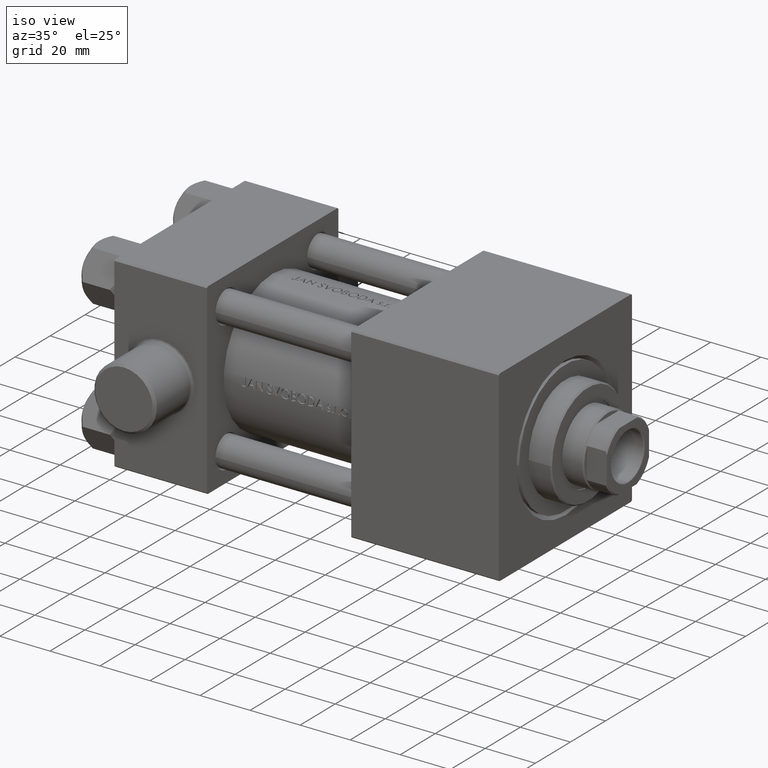
[diagram: clean part render]
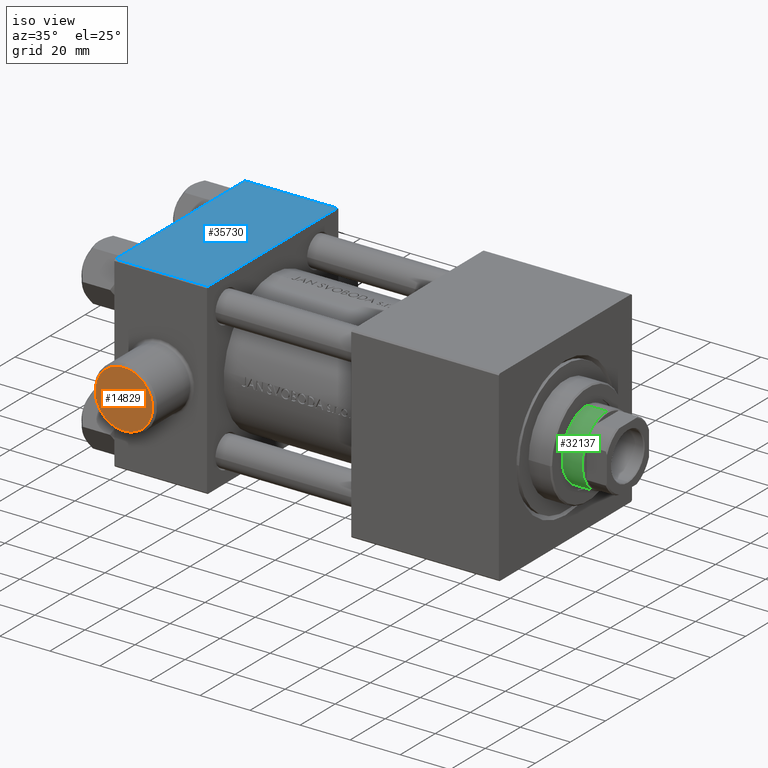
[diagram: same view with three faces highlighted in distinct colors, each labeled with its STEP entity id]
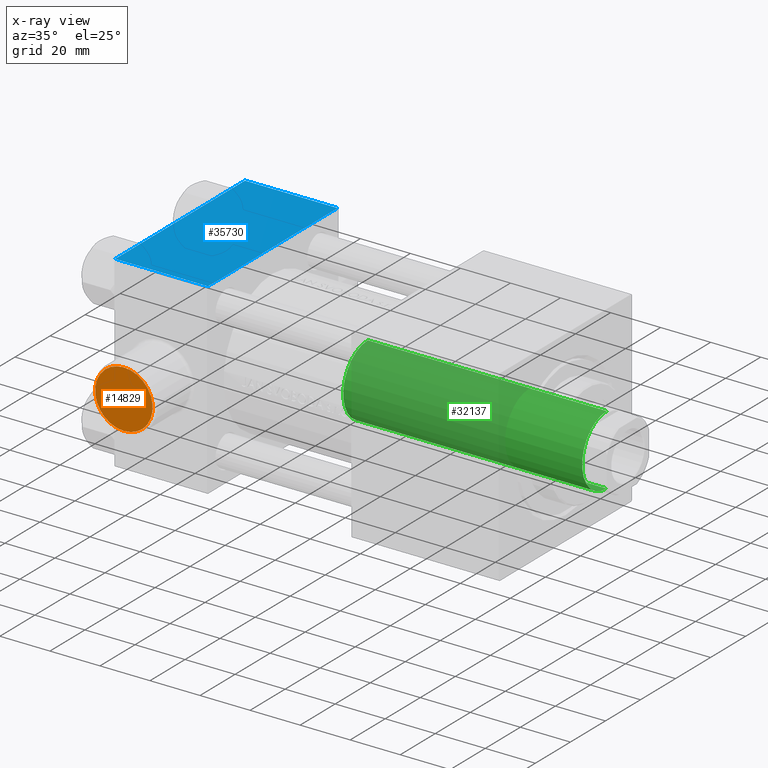
[diagram: x-ray of the same camera — body ghosted, the three highlighted faces saturated]
A machine part, iso view with three faces highlighted in distinct colors.
The next image is the same camera in x-ray (body ghosted, the three faces saturated) — at least one of them is partly hidden behind the body in this view.
Their STEP definitions:

[orange] entity #14829 — the highlighted planar face has unit normal (0, -1, -0).
#6042 = CARTESIAN_POINT ( 'NONE',  ( 18.50000000000000000, -58.50000000000000711, -5.290906601729263216E-15 ) ) ;
#6133 = CARTESIAN_POINT ( 'NONE',  ( 18.50000000000000000, -58.50000000000000711, 11.50000000000002842 ) ) ;
#6573 = CIRCLE ( 'NONE', #14058, 11.50000000000003375 ) ;
#7558 = CARTESIAN_POINT ( 'NONE',  ( 18.50000000000000000, -58.50000000000000711, -5.290906601729263216E-15 ) ) ;
#11489 = AXIS2_PLACEMENT_3D ( 'NONE', #35279, #24741, #31076 ) ;
#14058 = AXIS2_PLACEMENT_3D ( 'NONE', #7558, #21597, #28393 ) ;
#14829 = ADVANCED_FACE ( 'NONE', ( #37872 ), #26872, .T. ) ;
#15361 = AXIS2_PLACEMENT_3D ( 'NONE', #6042, #20315, #23126 ) ;
#20315 = DIRECTION ( 'NONE',  ( 0.000000000000000000, -1.000000000000000000, -8.673617379884036705E-17 ) ) ;
#20465 = CIRCLE ( 'NONE', #11489, 11.50000000000003375 ) ;
#21030 = EDGE_CURVE ( 'NONE', #37335, #25289, #6573, .T. ) ;
#21597 = DIRECTION ( 'NONE',  ( 0.000000000000000000, -1.000000000000000000, -8.673617379884036705E-17 ) ) ;
#22759 = ORIENTED_EDGE ( 'NONE', *, *, #21030, .T. ) ;
#23126 = DIRECTION ( 'NONE',  ( 0.000000000000000000, 8.673617379884036705E-17, -1.000000000000000000 ) ) ;
#24741 = DIRECTION ( 'NONE',  ( 0.000000000000000000, -1.000000000000000000, -8.673617379884036705E-17 ) ) ;
#25289 = VERTEX_POINT ( 'NONE', #27762 ) ;
#26872 = PLANE ( 'NONE',  #15361 ) ;
#27762 = CARTESIAN_POINT ( 'NONE',  ( 18.50000000000000000, -58.50000000000000711, -11.50000000000003908 ) ) ;
#28393 = DIRECTION ( 'NONE',  ( 0.000000000000000000, 0.000000000000000000, -1.000000000000000000 ) ) ;
#31076 = DIRECTION ( 'NONE',  ( 0.000000000000000000, 0.000000000000000000, -1.000000000000000000 ) ) ;
#35279 = CARTESIAN_POINT ( 'NONE',  ( 18.50000000000000000, -58.50000000000000711, -5.290906601729263216E-15 ) ) ;
#36320 = EDGE_LOOP ( 'NONE', ( #22759, #44923 ) ) ;
#37335 = VERTEX_POINT ( 'NONE', #6133 ) ;
#37872 = FACE_OUTER_BOUND ( 'NONE', #36320, .T. ) ;
#43722 = EDGE_CURVE ( 'NONE', #25289, #37335, #20465, .T. ) ;
#44923 = ORIENTED_EDGE ( 'NONE', *, *, #43722, .T. ) ;

[blue] entity #35730 — the highlighted planar face has unit normal (0, 0, -1).
#584 = CARTESIAN_POINT ( 'NONE',  ( 37.00000000000000000, 36.99999999999999289, 37.50000000000000000 ) ) ;
#3638 = ORIENTED_EDGE ( 'NONE', *, *, #20248, .T. ) ;
#4108 = CARTESIAN_POINT ( 'NONE',  ( 37.00000000000000000, 37.49999999999999289, 37.50000000000000000 ) ) ;
#4364 = ORIENTED_EDGE ( 'NONE', *, *, #32774, .T. ) ;
#5083 = ORIENTED_EDGE ( 'NONE', *, *, #16619, .T. ) ;
#5463 = VERTEX_POINT ( 'NONE', #584 ) ;
#5658 = EDGE_LOOP ( 'NONE', ( #5083, #4364, #37867, #3638 ) ) ;
#8297 = LINE ( 'NONE', #8535, #20132 ) ;
#8535 = CARTESIAN_POINT ( 'NONE',  ( 37.00000000000000000, -37.00000000000000711, 37.49999999999999289 ) ) ;
#11762 = VECTOR ( 'NONE', #43635, 1000.000000000000000 ) ;
#11981 = VERTEX_POINT ( 'NONE', #44684 ) ;
#13060 = DIRECTION ( 'NONE',  ( 0.000000000000000000, 1.000000000000000000, 9.251858538542971581E-17 ) ) ;
#16619 = EDGE_CURVE ( 'NONE', #21704, #41434, #25112, .T. ) ;
#16954 = CARTESIAN_POINT ( 'NONE',  ( 0.000000000000000000, 36.99999999999999289, 37.50000000000000000 ) ) ;
#19126 = FACE_OUTER_BOUND ( 'NONE', #5658, .T. ) ;
#19820 = CARTESIAN_POINT ( 'NONE',  ( 37.00000000000000000, 37.49999999999999289, 37.50000000000000000 ) ) ;
#20132 = VECTOR ( 'NONE', #22560, 1000.000000000000000 ) ;
#20248 = EDGE_CURVE ( 'NONE', #5463, #21704, #27397, .T. ) ;
#21704 = VERTEX_POINT ( 'NONE', #16954 ) ;
#22560 = DIRECTION ( 'NONE',  ( 1.000000000000000000, 0.000000000000000000, 0.000000000000000000 ) ) ;
#23232 = VECTOR ( 'NONE', #36651, 1000.000000000000000 ) ;
#25112 = LINE ( 'NONE', #40323, #26610 ) ;
#25832 = CARTESIAN_POINT ( 'NONE',  ( 0.000000000000000000, 36.99999999999999289, 37.50000000000000000 ) ) ;
#26610 = VECTOR ( 'NONE', #36814, 1000.000000000000000 ) ;
#26840 = PLANE ( 'NONE',  #44886 ) ;
#27397 = LINE ( 'NONE', #25832, #11762 ) ;
#32774 = EDGE_CURVE ( 'NONE', #41434, #11981, #8297, .T. ) ;
#34109 = DIRECTION ( 'NONE',  ( 0.000000000000000000, 9.251858538542971581E-17, -1.000000000000000000 ) ) ;
#35153 = CARTESIAN_POINT ( 'NONE',  ( 0.000000000000000000, -37.00000000000000711, 37.49999999999999289 ) ) ;
#35730 = ADVANCED_FACE ( 'NONE', ( #19126 ), #26840, .F. ) ;
#36651 = DIRECTION ( 'NONE',  ( 0.000000000000000000, -1.000000000000000000, -9.251858538542971581E-17 ) ) ;
#36814 = DIRECTION ( 'NONE',  ( 0.000000000000000000, -1.000000000000000000, -9.251858538542971581E-17 ) ) ;
#36881 = EDGE_CURVE ( 'NONE', #5463, #11981, #39923, .T. ) ;
#37867 = ORIENTED_EDGE ( 'NONE', *, *, #36881, .F. ) ;
#39923 = LINE ( 'NONE', #4108, #23232 ) ;
#40323 = CARTESIAN_POINT ( 'NONE',  ( 0.000000000000000000, 37.49999999999999289, 37.50000000000000000 ) ) ;
#41434 = VERTEX_POINT ( 'NONE', #35153 ) ;
#43635 = DIRECTION ( 'NONE',  ( -1.000000000000000000, 0.000000000000000000, 0.000000000000000000 ) ) ;
#44684 = CARTESIAN_POINT ( 'NONE',  ( 37.00000000000000000, -37.00000000000000711, 37.49999999999999289 ) ) ;
#44886 = AXIS2_PLACEMENT_3D ( 'NONE', #19820, #34109, #13060 ) ;

[green] entity #32137 — the highlighted cylindrical surface (partial cylindrical patch) has radius 14 mm, axis along (-1, 0, 0).
#676 = CARTESIAN_POINT ( 'NONE',  ( 14.00000000000000178, 1.714505518806294835E-15, 133.5000000000000284 ) ) ;
#2260 = CARTESIAN_POINT ( 'NONE',  ( 0.000000000000000000, 0.000000000000000000, 133.5000000000000284 ) ) ;
#2621 = EDGE_LOOP ( 'NONE', ( #28942, #26863, #17955, #20064 ) ) ;
#4535 = DIRECTION ( 'NONE',  ( -0.000000000000000000, -0.000000000000000000, -1.000000000000000000 ) ) ;
#5302 = EDGE_CURVE ( 'NONE', #39637, #8122, #9230, .T. ) ;
#5303 = DIRECTION ( 'NONE',  ( 0.000000000000000000, 0.000000000000000000, -1.000000000000000000 ) ) ;
#5618 = CARTESIAN_POINT ( 'NONE',  ( 14.00000000000000178, 1.714505518806294835E-15, 38.00000000000000000 ) ) ;
#8122 = VERTEX_POINT ( 'NONE', #676 ) ;
#8677 = LINE ( 'NONE', #9142, #29207 ) ;
#9142 = CARTESIAN_POINT ( 'NONE',  ( 14.00000000000000178, 1.714505518806294835E-15, 134.0000000000000000 ) ) ;
#9230 = CIRCLE ( 'NONE', #42129, 14.00000000000000178 ) ;
#9301 = DIRECTION ( 'NONE',  ( 1.000000000000000000, 0.000000000000000000, 0.000000000000000000 ) ) ;
#10479 = CARTESIAN_POINT ( 'NONE',  ( -14.00000000000000178, 0.000000000000000000, 134.0000000000000000 ) ) ;
#10570 = EDGE_CURVE ( 'NONE', #39637, #24557, #22331, .T. ) ;
#14863 = CIRCLE ( 'NONE', #15696, 14.00000000000000178 ) ;
#15696 = AXIS2_PLACEMENT_3D ( 'NONE', #22232, #22457, #36741 ) ;
#16552 = CARTESIAN_POINT ( 'NONE',  ( 0.000000000000000000, 0.000000000000000000, 134.0000000000000000 ) ) ;
#17955 = ORIENTED_EDGE ( 'NONE', *, *, #30861, .T. ) ;
#19822 = FACE_OUTER_BOUND ( 'NONE', #2621, .T. ) ;
#20064 = ORIENTED_EDGE ( 'NONE', *, *, #10570, .F. ) ;
#22232 = CARTESIAN_POINT ( 'NONE',  ( 0.000000000000000000, 0.000000000000000000, 38.00000000000000000 ) ) ;
#22303 = VERTEX_POINT ( 'NONE', #5618 ) ;
#22331 = LINE ( 'NONE', #10479, #38408 ) ;
#22457 = DIRECTION ( 'NONE',  ( 0.000000000000000000, 0.000000000000000000, 1.000000000000000000 ) ) ;
#24557 = VERTEX_POINT ( 'NONE', #44229 ) ;
#26863 = ORIENTED_EDGE ( 'NONE', *, *, #37510, .T. ) ;
#27534 = CYLINDRICAL_SURFACE ( 'NONE', #29814, 14.00000000000000178 ) ;
#28942 = ORIENTED_EDGE ( 'NONE', *, *, #5302, .T. ) ;
#29207 = VECTOR ( 'NONE', #40730, 1000.000000000000000 ) ;
#29814 = AXIS2_PLACEMENT_3D ( 'NONE', #16552, #33872, #40892 ) ;
#30861 = EDGE_CURVE ( 'NONE', #22303, #24557, #14863, .T. ) ;
#32137 = ADVANCED_FACE ( 'NONE', ( #19822 ), #27534, .T. ) ;
#33872 = DIRECTION ( 'NONE',  ( -0.000000000000000000, -0.000000000000000000, -1.000000000000000000 ) ) ;
#36741 = DIRECTION ( 'NONE',  ( 1.000000000000000000, 0.000000000000000000, 0.000000000000000000 ) ) ;
#36912 = CARTESIAN_POINT ( 'NONE',  ( -14.00000000000000178, 0.000000000000000000, 133.5000000000000284 ) ) ;
#37510 = EDGE_CURVE ( 'NONE', #8122, #22303, #8677, .T. ) ;
#38408 = VECTOR ( 'NONE', #4535, 1000.000000000000000 ) ;
#39637 = VERTEX_POINT ( 'NONE', #36912 ) ;
#40730 = DIRECTION ( 'NONE',  ( -0.000000000000000000, -0.000000000000000000, -1.000000000000000000 ) ) ;
#40892 = DIRECTION ( 'NONE',  ( -1.000000000000000000, 0.000000000000000000, 0.000000000000000000 ) ) ;
#42129 = AXIS2_PLACEMENT_3D ( 'NONE', #2260, #5303, #9301 ) ;
#44229 = CARTESIAN_POINT ( 'NONE',  ( -14.00000000000000178, 0.000000000000000000, 38.00000000000000000 ) ) ;